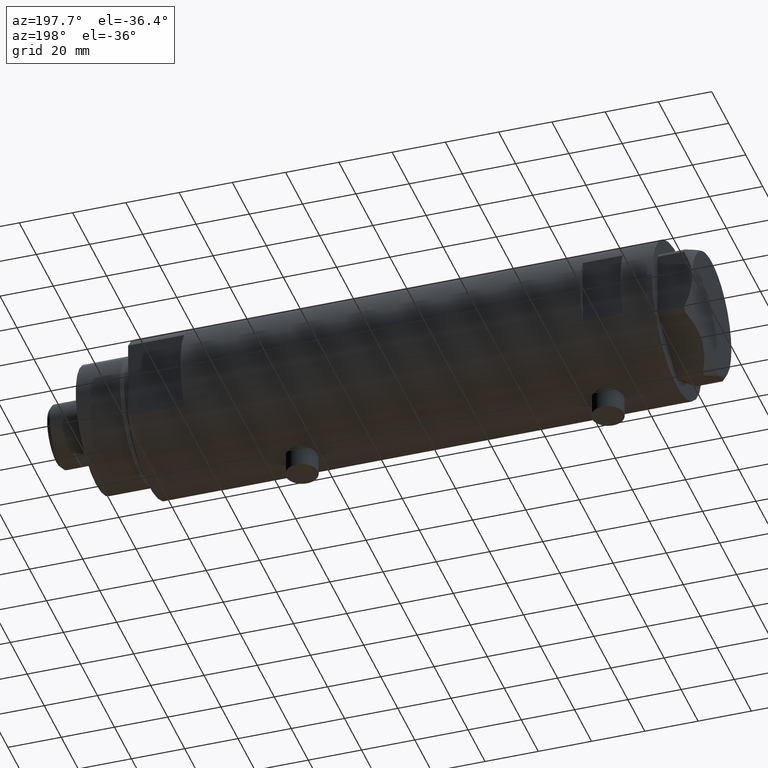
[diagram: clean part render]
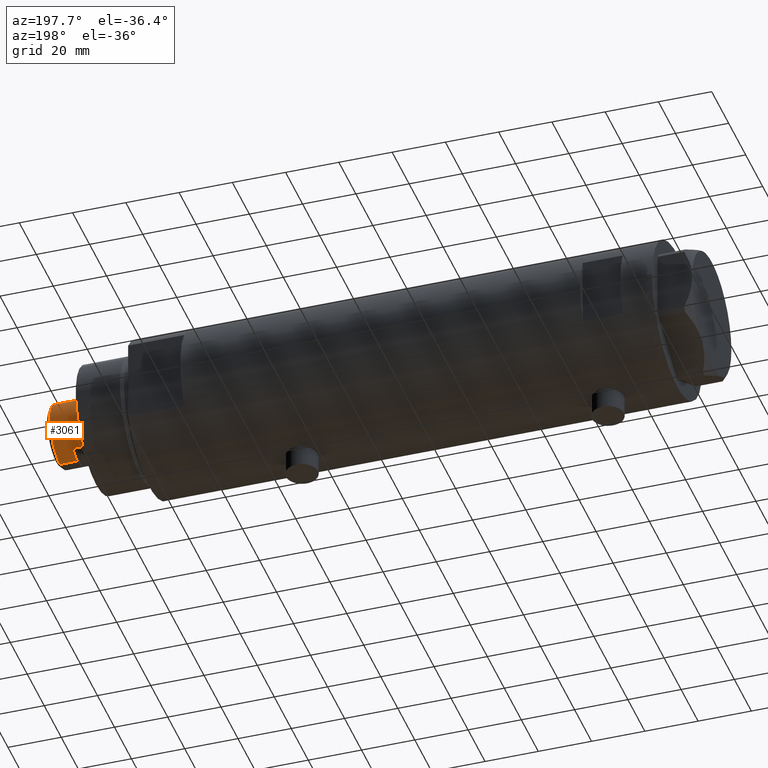
[diagram: same view with one face highlighted and labeled with its STEP entity id]
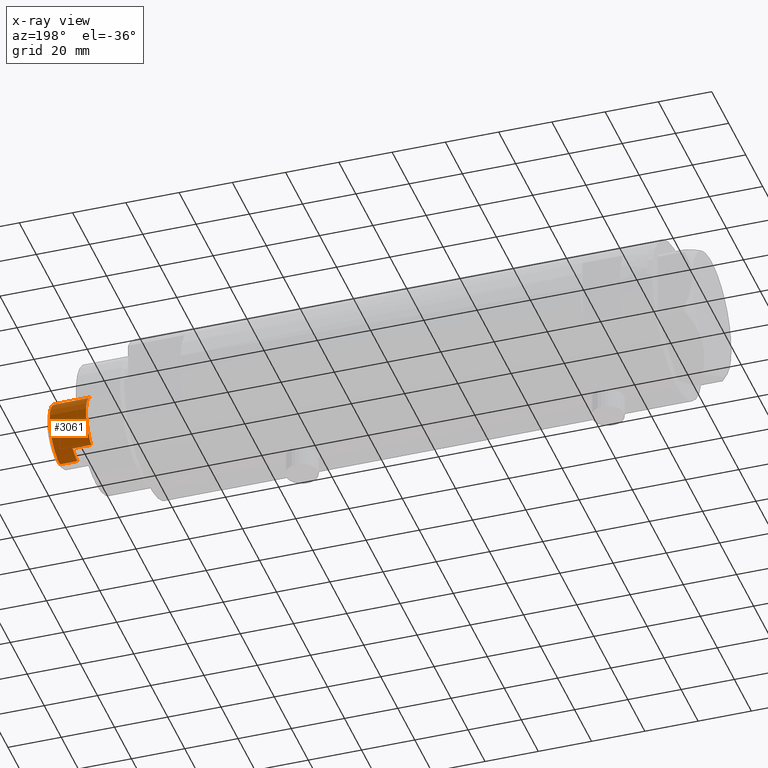
[diagram: x-ray of the same camera — body ghosted, the highlighted face saturated]
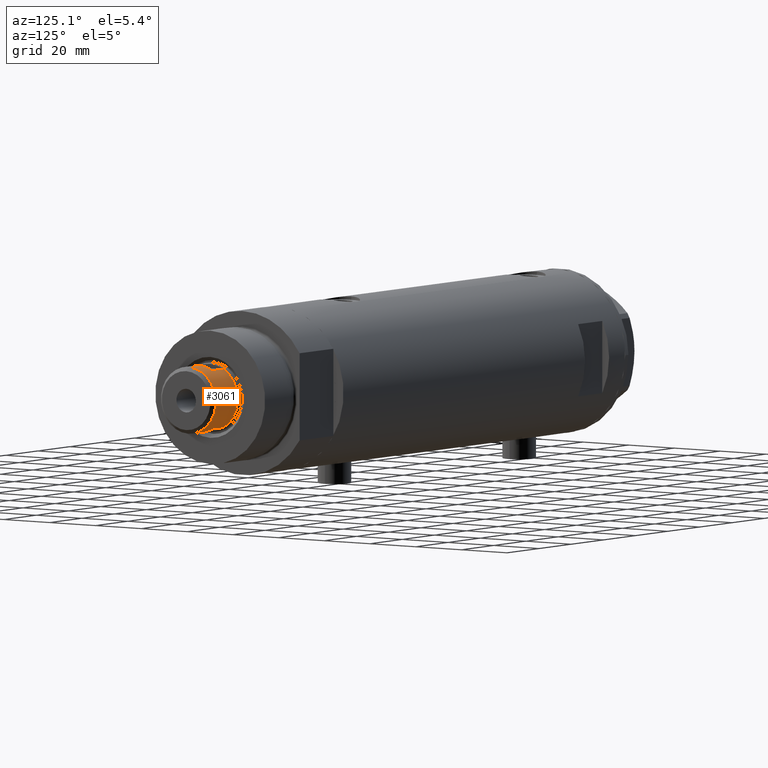
[diagram: same view with one face highlighted and labeled with its STEP entity id]
A machine part, auxiliary view. The second image highlights one B-rep face of the part: STEP entity #3061.
The next image is the same camera in x-ray: the body ghosted, the highlighted face saturated — about 0% of this face is hidden behind the body in this view.
A second angle (auxiliary view) of the same face is appended — the face is thin or edge-on in the first view.
In plain terms, the highlighted cylindrical surface (edge-blend (fillet) strip) has radius 12 mm, axis along (-1, -0, 0).
Its self-contained STEP definition (entity closure, byte-faithful):
#69 = VECTOR ( 'NONE', #2707, 1000.000000000000000 ) ;
#96 = EDGE_CURVE ( 'NONE', #1048, #2085, #1630, .T. ) ;
#197 = DIRECTION ( 'NONE',  ( 0.000000000000000000, 0.000000000000000000, 1.000000000000000000 ) ) ;
#271 = LINE ( 'NONE', #3052, #3963 ) ;
#493 = DIRECTION ( 'NONE',  ( 0.000000000000000000, 0.000000000000000000, 1.000000000000000000 ) ) ;
#526 = CARTESIAN_POINT ( 'NONE',  ( 10.48861764008966269, 5.830000000000000071, 199.6999999999999886 ) ) ;
#530 = DIRECTION ( 'NONE',  ( 0.000000000000000000, 0.000000000000000000, -1.000000000000000000 ) ) ;
#536 = CARTESIAN_POINT ( 'NONE',  ( 0.000000000000000000, 0.000000000000000000, 199.6999999999999886 ) ) ;
#567 = ORIENTED_EDGE ( 'NONE', *, *, #3888, .T. ) ;
#739 = DIRECTION ( 'NONE',  ( -0.000000000000000000, -0.000000000000000000, -1.000000000000000000 ) ) ;
#784 = AXIS2_PLACEMENT_3D ( 'NONE', #536, #493, #1907 ) ;
#786 = EDGE_CURVE ( 'NONE', #1382, #4356, #1858, .T. ) ;
#796 = CYLINDRICAL_SURFACE ( 'NONE', #3886, 12.00000000000000000 ) ;
#841 = ORIENTED_EDGE ( 'NONE', *, *, #786, .T. ) ;
#851 = DIRECTION ( 'NONE',  ( 1.000000000000000000, 0.000000000000000000, 0.000000000000000000 ) ) ;
#884 = VERTEX_POINT ( 'NONE', #3516 ) ;
#938 = EDGE_CURVE ( 'NONE', #2167, #1755, #1410, .T. ) ;
#1042 = ORIENTED_EDGE ( 'NONE', *, *, #96, .T. ) ;
#1048 = VERTEX_POINT ( 'NONE', #2188 ) ;
#1075 = CARTESIAN_POINT ( 'NONE',  ( 12.00000000000000000, 1.469576158976823947E-15, 199.6999999999999886 ) ) ;
#1095 = CARTESIAN_POINT ( 'NONE',  ( 10.48861764008966269, 5.830000000000000071, 192.6999999999999886 ) ) ;
#1153 = EDGE_CURVE ( 'NONE', #1755, #4308, #3235, .T. ) ;
#1327 = LINE ( 'NONE', #2327, #69 ) ;
#1373 = CARTESIAN_POINT ( 'NONE',  ( 0.000000000000000000, 0.000000000000000000, 199.6999999999999886 ) ) ;
#1382 = VERTEX_POINT ( 'NONE', #1095 ) ;
#1410 = LINE ( 'NONE', #1075, #3659 ) ;
#1432 = ORIENTED_EDGE ( 'NONE', *, *, #2923, .F. ) ;
#1630 = CIRCLE ( 'NONE', #2134, 12.00000000000000178 ) ;
#1674 = CARTESIAN_POINT ( 'NONE',  ( -10.48861764008966269, 5.829999999999999183, 199.6999999999999886 ) ) ;
#1692 = DIRECTION ( 'NONE',  ( -0.000000000000000000, -0.000000000000000000, -1.000000000000000000 ) ) ;
#1755 = VERTEX_POINT ( 'NONE', #2515 ) ;
#1858 = CIRCLE ( 'NONE', #4381, 12.00000000000001066 ) ;
#1896 = EDGE_LOOP ( 'NONE', ( #567, #2236, #3447, #2623, #841, #3495, #1042, #1432 ) ) ;
#1907 = DIRECTION ( 'NONE',  ( 1.000000000000000000, 0.000000000000000000, 0.000000000000000000 ) ) ;
#2073 = LINE ( 'NONE', #1674, #2078 ) ;
#2078 = VECTOR ( 'NONE', #1692, 1000.000000000000000 ) ;
#2085 = VERTEX_POINT ( 'NONE', #2404 ) ;
#2134 = AXIS2_PLACEMENT_3D ( 'NONE', #3890, #3238, #851 ) ;
#2167 = VERTEX_POINT ( 'NONE', #2425 ) ;
#2169 = CIRCLE ( 'NONE', #4262, 12.00000000000000000 ) ;
#2188 = CARTESIAN_POINT ( 'NONE',  ( -10.48861764008966269, 5.829999999999999183, 199.6999999999999886 ) ) ;
#2236 = ORIENTED_EDGE ( 'NONE', *, *, #938, .T. ) ;
#2307 = DIRECTION ( 'NONE',  ( 1.000000000000000000, 0.000000000000000000, 0.000000000000000000 ) ) ;
#2327 = CARTESIAN_POINT ( 'NONE',  ( -12.00000000000000000, 0.000000000000000000, 199.6999999999999886 ) ) ;
#2328 = CARTESIAN_POINT ( 'NONE',  ( 0.000000000000000000, 0.000000000000000000, 206.2999999999999829 ) ) ;
#2404 = CARTESIAN_POINT ( 'NONE',  ( -12.00000000000000355, 0.000000000000000000, 199.6999999999999886 ) ) ;
#2425 = CARTESIAN_POINT ( 'NONE',  ( 12.00000000000000000, 1.469576158976823947E-15, 206.2999999999999829 ) ) ;
#2508 = FACE_OUTER_BOUND ( 'NONE', #1896, .T. ) ;
#2515 = CARTESIAN_POINT ( 'NONE',  ( 12.00000000000000355, 1.469576158976824342E-15, 199.6999999999999886 ) ) ;
#2592 = CARTESIAN_POINT ( 'NONE',  ( 0.000000000000000000, 0.000000000000000000, 192.6999999999999886 ) ) ;
#2623 = ORIENTED_EDGE ( 'NONE', *, *, #2876, .T. ) ;
#2680 = EDGE_CURVE ( 'NONE', #1048, #4356, #2073, .T. ) ;
#2707 = DIRECTION ( 'NONE',  ( -0.000000000000000000, -0.000000000000000000, -1.000000000000000000 ) ) ;
#2876 = EDGE_CURVE ( 'NONE', #4308, #1382, #271, .T. ) ;
#2923 = EDGE_CURVE ( 'NONE', #884, #2085, #1327, .T. ) ;
#3052 = CARTESIAN_POINT ( 'NONE',  ( 10.48861764008966269, 5.830000000000000071, 199.6999999999999886 ) ) ;
#3061 = ADVANCED_FACE ( 'NONE', ( #2508 ), #796, .T. ) ;
#3235 = CIRCLE ( 'NONE', #784, 12.00000000000000178 ) ;
#3238 = DIRECTION ( 'NONE',  ( 0.000000000000000000, 0.000000000000000000, 1.000000000000000000 ) ) ;
#3447 = ORIENTED_EDGE ( 'NONE', *, *, #1153, .T. ) ;
#3495 = ORIENTED_EDGE ( 'NONE', *, *, #2680, .F. ) ;
#3516 = CARTESIAN_POINT ( 'NONE',  ( -12.00000000000000000, 0.000000000000000000, 206.2999999999999829 ) ) ;
#3659 = VECTOR ( 'NONE', #739, 1000.000000000000000 ) ;
#3784 = DIRECTION ( 'NONE',  ( -1.000000000000000000, 0.000000000000000000, 0.000000000000000000 ) ) ;
#3849 = DIRECTION ( 'NONE',  ( 1.000000000000000000, 0.000000000000000000, 0.000000000000000000 ) ) ;
#3886 = AXIS2_PLACEMENT_3D ( 'NONE', #1373, #4173, #3784 ) ;
#3888 = EDGE_CURVE ( 'NONE', #884, #2167, #2169, .T. ) ;
#3890 = CARTESIAN_POINT ( 'NONE',  ( 0.000000000000000000, 0.000000000000000000, 199.6999999999999886 ) ) ;
#3963 = VECTOR ( 'NONE', #4082, 1000.000000000000000 ) ;
#4082 = DIRECTION ( 'NONE',  ( -0.000000000000000000, -0.000000000000000000, -1.000000000000000000 ) ) ;
#4173 = DIRECTION ( 'NONE',  ( -0.000000000000000000, -0.000000000000000000, -1.000000000000000000 ) ) ;
#4262 = AXIS2_PLACEMENT_3D ( 'NONE', #2328, #530, #2307 ) ;
#4308 = VERTEX_POINT ( 'NONE', #526 ) ;
#4356 = VERTEX_POINT ( 'NONE', #4400 ) ;
#4381 = AXIS2_PLACEMENT_3D ( 'NONE', #2592, #197, #3849 ) ;
#4400 = CARTESIAN_POINT ( 'NONE',  ( -10.48861764008966446, 5.830000000000016946, 192.6999999999999886 ) ) ;